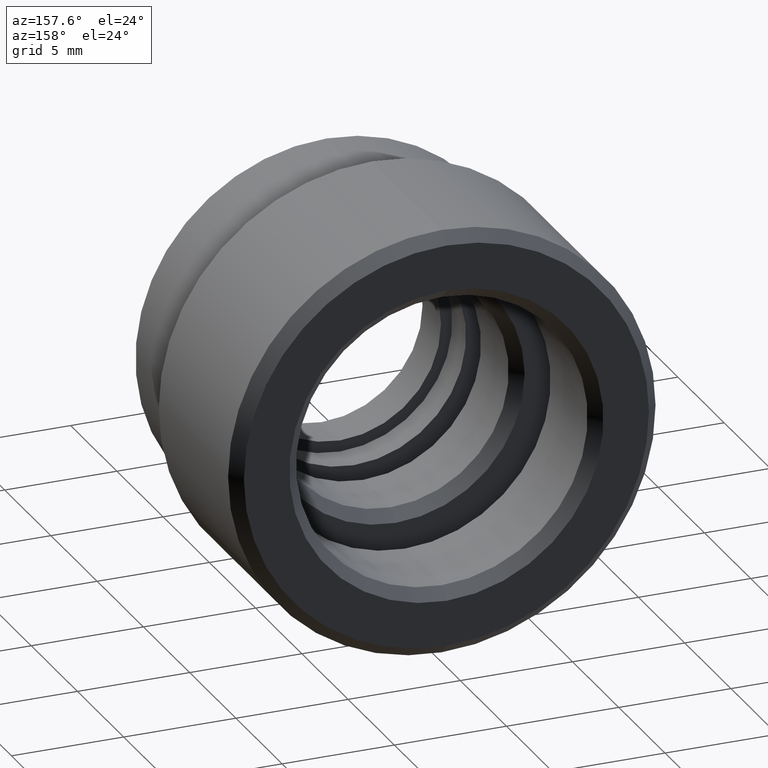
[diagram: clean part render]
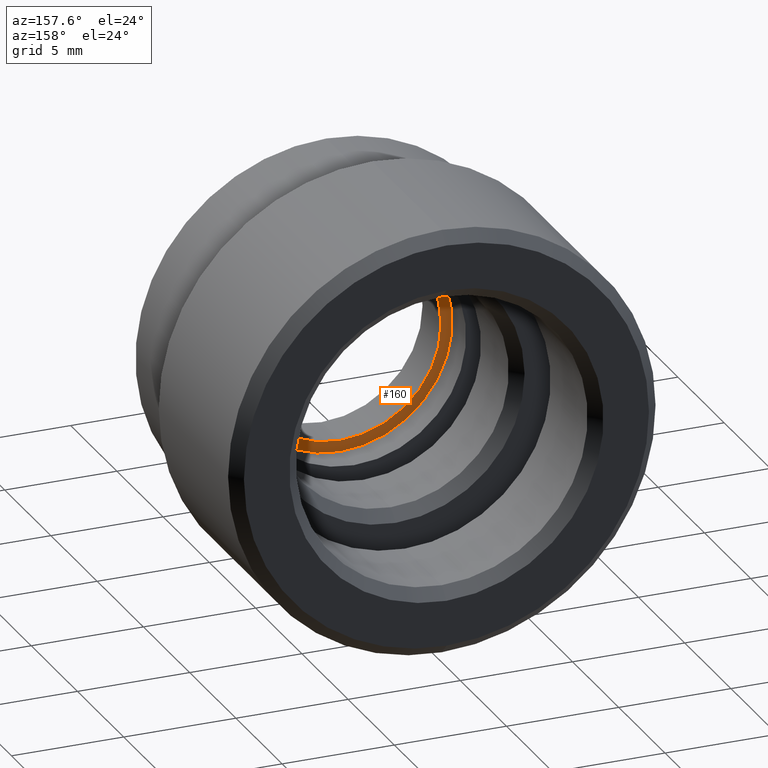
[diagram: same view with one face highlighted and labeled with its STEP entity id]
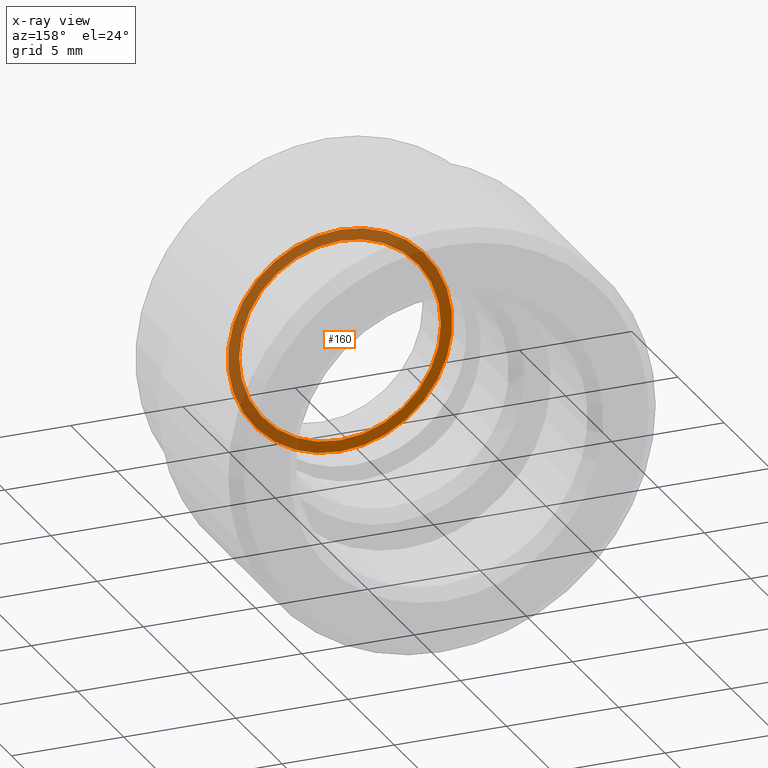
[diagram: x-ray of the same camera — body ghosted, the highlighted face saturated]
A machine part, auxiliary view. The second image highlights one B-rep face of the part: STEP entity #160.
The next image is the same camera in x-ray: the body ghosted, the highlighted face saturated — about 65% of this face is hidden behind the body in this view.
In plain terms, the highlighted planar face has unit normal (0, 1, 0).
Its self-contained STEP definition (entity closure, byte-faithful):
#5 = EDGE_LOOP ( 'NONE', ( #659, #388 ) ) ;
#27 = CARTESIAN_POINT ( 'NONE',  ( 0.0000000000000000000, 2.000000000000000000, 0.0000000000000000000 ) ) ;
#33 = DIRECTION ( 'NONE',  ( -0.0000000000000000000, -1.000000000000000000, -0.0000000000000000000 ) ) ;
#37 = DIRECTION ( 'NONE',  ( 0.0000000000000000000, 0.0000000000000000000, -1.000000000000000000 ) ) ;
#60 = CIRCLE ( 'NONE', #526, 5.000000000000000000 ) ;
#85 = VERTEX_POINT ( 'NONE', #314 ) ;
#113 = DIRECTION ( 'NONE',  ( 0.0000000000000000000, 0.0000000000000000000, -1.000000000000000000 ) ) ;
#116 = CIRCLE ( 'NONE', #592, 4.500000000000000000 ) ;
#119 = CARTESIAN_POINT ( 'NONE',  ( 4.500000000000000000, 2.000000000000000000, 0.0000000000000000000 ) ) ;
#160 = ADVANCED_FACE ( 'NONE', ( #1063, #945 ), #533, .T. ) ;
#208 = AXIS2_PLACEMENT_3D ( 'NONE', #119, #800, #227 ) ;
#227 = DIRECTION ( 'NONE',  ( 0.0000000000000000000, -0.0000000000000000000, 1.000000000000000000 ) ) ;
#263 = CIRCLE ( 'NONE', #822, 4.500000000000000000 ) ;
#273 = CARTESIAN_POINT ( 'NONE',  ( 0.0000000000000000000, 2.000000000000000000, -5.000000000000000000 ) ) ;
#299 = DIRECTION ( 'NONE',  ( -0.0000000000000000000, -1.000000000000000000, -0.0000000000000000000 ) ) ;
#307 = EDGE_CURVE ( 'NONE', #1060, #338, #589, .T. ) ;
#314 = CARTESIAN_POINT ( 'NONE',  ( 5.510910596163088600E-016, 2.000000000000000000, 4.500000000000000000 ) ) ;
#331 = DIRECTION ( 'NONE',  ( 0.0000000000000000000, 0.0000000000000000000, -1.000000000000000000 ) ) ;
#338 = VERTEX_POINT ( 'NONE', #273 ) ;
#388 = ORIENTED_EDGE ( 'NONE', *, *, #307, .F. ) ;
#440 = EDGE_CURVE ( 'NONE', #678, #85, #263, .T. ) ;
#448 = CARTESIAN_POINT ( 'NONE',  ( 6.123233995736766300E-016, 2.000000000000000000, 5.000000000000000000 ) ) ;
#466 = AXIS2_PLACEMENT_3D ( 'NONE', #27, #33, #37 ) ;
#513 = EDGE_LOOP ( 'NONE', ( #1045, #1038 ) ) ;
#526 = AXIS2_PLACEMENT_3D ( 'NONE', #670, #636, #331 ) ;
#533 = PLANE ( 'NONE',  #208 ) ;
#589 = CIRCLE ( 'NONE', #466, 5.000000000000000000 ) ;
#592 = AXIS2_PLACEMENT_3D ( 'NONE', #974, #299, #113 ) ;
#636 = DIRECTION ( 'NONE',  ( -0.0000000000000000000, -1.000000000000000000, -0.0000000000000000000 ) ) ;
#659 = ORIENTED_EDGE ( 'NONE', *, *, #1016, .F. ) ;
#670 = CARTESIAN_POINT ( 'NONE',  ( 0.0000000000000000000, 2.000000000000000000, 0.0000000000000000000 ) ) ;
#678 = VERTEX_POINT ( 'NONE', #929 ) ;
#800 = DIRECTION ( 'NONE',  ( 0.0000000000000000000, 1.000000000000000000, 0.0000000000000000000 ) ) ;
#822 = AXIS2_PLACEMENT_3D ( 'NONE', #1058, #1050, #1048 ) ;
#915 = EDGE_CURVE ( 'NONE', #85, #678, #116, .T. ) ;
#929 = CARTESIAN_POINT ( 'NONE',  ( 0.0000000000000000000, 2.000000000000000000, -4.500000000000000000 ) ) ;
#945 = FACE_OUTER_BOUND ( 'NONE', #5, .T. ) ;
#974 = CARTESIAN_POINT ( 'NONE',  ( 0.0000000000000000000, 2.000000000000000000, 0.0000000000000000000 ) ) ;
#1016 = EDGE_CURVE ( 'NONE', #338, #1060, #60, .T. ) ;
#1038 = ORIENTED_EDGE ( 'NONE', *, *, #915, .T. ) ;
#1045 = ORIENTED_EDGE ( 'NONE', *, *, #440, .T. ) ;
#1048 = DIRECTION ( 'NONE',  ( 0.0000000000000000000, 0.0000000000000000000, -1.000000000000000000 ) ) ;
#1050 = DIRECTION ( 'NONE',  ( -0.0000000000000000000, -1.000000000000000000, -0.0000000000000000000 ) ) ;
#1058 = CARTESIAN_POINT ( 'NONE',  ( 0.0000000000000000000, 2.000000000000000000, 0.0000000000000000000 ) ) ;
#1060 = VERTEX_POINT ( 'NONE', #448 ) ;
#1063 = FACE_BOUND ( 'NONE', #513, .T. ) ;